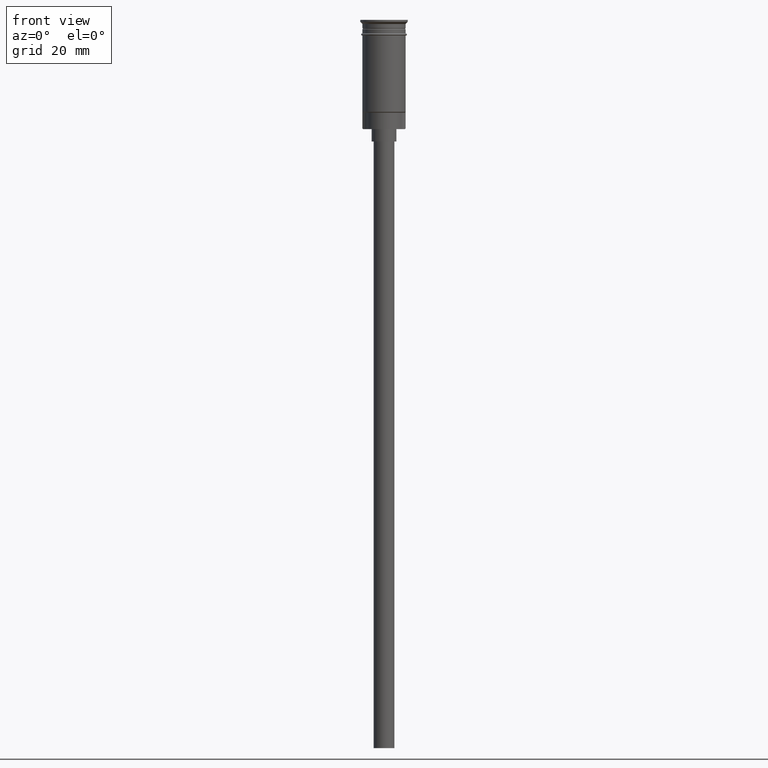
[diagram: clean part render]
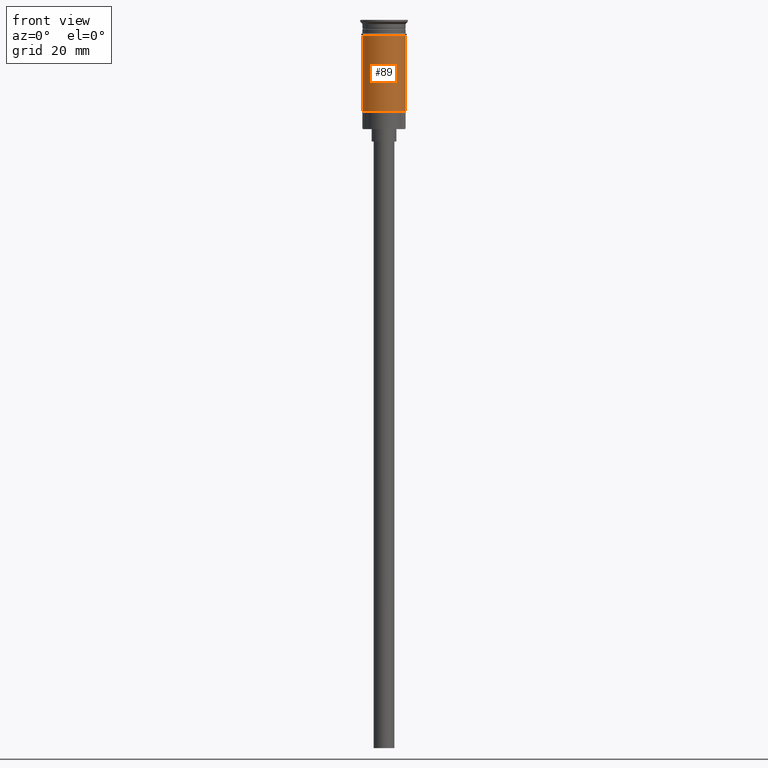
[diagram: same view with one face highlighted and labeled with its STEP entity id]
A machine part, front view. The second image highlights one B-rep face of the part: STEP entity #89.
In plain terms, the highlighted cylindrical surface (edge-blend (fillet) strip) has radius 5.25 mm, axis along (-0, -0, 1).
Its self-contained STEP definition (entity closure, byte-faithful):
#80 = AXIS2_PLACEMENT_3D ( 'NONE', #1387, #279, #1274 ) ;
#89 = ADVANCED_FACE ( 'NONE', ( #401 ), #1402, .T. ) ;
#167 = ORIENTED_EDGE ( 'NONE', *, *, #768, .T. ) ;
#221 = CARTESIAN_POINT ( 'NONE',  ( 0.000000000000000000, 0.000000000000000000, -3.799999999999998934 ) ) ;
#227 = ORIENTED_EDGE ( 'NONE', *, *, #947, .F. ) ;
#250 = DIRECTION ( 'NONE',  ( 1.000000000000000000, 0.000000000000000000, 0.000000000000000000 ) ) ;
#279 = DIRECTION ( 'NONE',  ( -0.000000000000000000, -0.000000000000000000, 1.000000000000000000 ) ) ;
#355 = CARTESIAN_POINT ( 'NONE',  ( 5.249999999999999112, 0.000000000000000000, -3.799999999999998934 ) ) ;
#375 = DIRECTION ( 'NONE',  ( -0.000000000000000000, -0.000000000000000000, 1.000000000000000000 ) ) ;
#401 = FACE_OUTER_BOUND ( 'NONE', #541, .T. ) ;
#423 = VERTEX_POINT ( 'NONE', #1505 ) ;
#486 = CARTESIAN_POINT ( 'NONE',  ( 0.000000000000000000, 0.000000000000000000, -22.29999999999998295 ) ) ;
#533 = DIRECTION ( 'NONE',  ( -0.000000000000000000, -0.000000000000000000, 1.000000000000000000 ) ) ;
#541 = EDGE_LOOP ( 'NONE', ( #656, #936, #167, #227 ) ) ;
#592 = VERTEX_POINT ( 'NONE', #1363 ) ;
#600 = LINE ( 'NONE', #1599, #991 ) ;
#601 = CIRCLE ( 'NONE', #1418, 5.249999999999996447 ) ;
#614 = DIRECTION ( 'NONE',  ( -0.000000000000000000, -0.000000000000000000, 1.000000000000000000 ) ) ;
#632 = VERTEX_POINT ( 'NONE', #1295 ) ;
#656 = ORIENTED_EDGE ( 'NONE', *, *, #979, .F. ) ;
#696 = CIRCLE ( 'NONE', #858, 5.249999999999999112 ) ;
#768 = EDGE_CURVE ( 'NONE', #423, #975, #1508, .T. ) ;
#858 = AXIS2_PLACEMENT_3D ( 'NONE', #221, #375, #250 ) ;
#906 = CARTESIAN_POINT ( 'NONE',  ( 5.249999999999996447, 0.000000000000000000, 0.000000000000000000 ) ) ;
#936 = ORIENTED_EDGE ( 'NONE', *, *, #1434, .T. ) ;
#947 = EDGE_CURVE ( 'NONE', #592, #975, #696, .T. ) ;
#960 = VECTOR ( 'NONE', #533, 1000.000000000000000 ) ;
#975 = VERTEX_POINT ( 'NONE', #355 ) ;
#979 = EDGE_CURVE ( 'NONE', #632, #592, #600, .T. ) ;
#991 = VECTOR ( 'NONE', #1096, 1000.000000000000000 ) ;
#1096 = DIRECTION ( 'NONE',  ( -0.000000000000000000, -0.000000000000000000, 1.000000000000000000 ) ) ;
#1108 = DIRECTION ( 'NONE',  ( -1.000000000000000000, 0.000000000000000000, 0.000000000000000000 ) ) ;
#1274 = DIRECTION ( 'NONE',  ( 1.000000000000000000, 0.000000000000000000, 0.000000000000000000 ) ) ;
#1295 = CARTESIAN_POINT ( 'NONE',  ( -5.249999999999994671, 0.000000000000000000, -22.29999999999998295 ) ) ;
#1363 = CARTESIAN_POINT ( 'NONE',  ( -5.249999999999999112, 6.429395695523603167E-16, -3.799999999999998934 ) ) ;
#1387 = CARTESIAN_POINT ( 'NONE',  ( 0.000000000000000000, 0.000000000000000000, 0.000000000000000000 ) ) ;
#1402 = CYLINDRICAL_SURFACE ( 'NONE', #80, 5.249999999999996447 ) ;
#1418 = AXIS2_PLACEMENT_3D ( 'NONE', #486, #614, #1108 ) ;
#1434 = EDGE_CURVE ( 'NONE', #632, #423, #601, .T. ) ;
#1505 = CARTESIAN_POINT ( 'NONE',  ( 5.249999999999996447, 6.429395695523600208E-16, -22.29999999999998295 ) ) ;
#1508 = LINE ( 'NONE', #906, #960 ) ;
#1599 = CARTESIAN_POINT ( 'NONE',  ( -5.249999999999996447, 6.429395695523600208E-16, 0.000000000000000000 ) ) ;